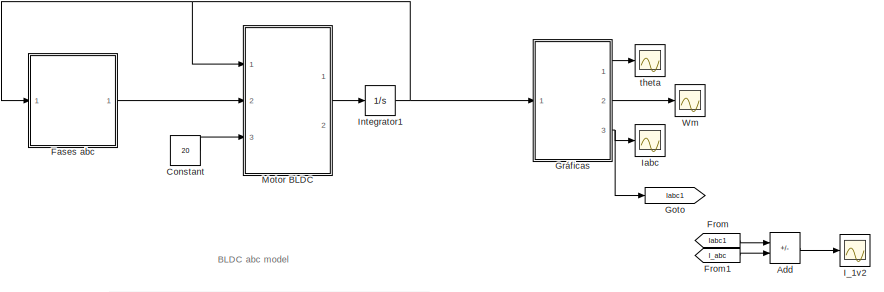
[diagram: root canvas - part 1/3, top center region]
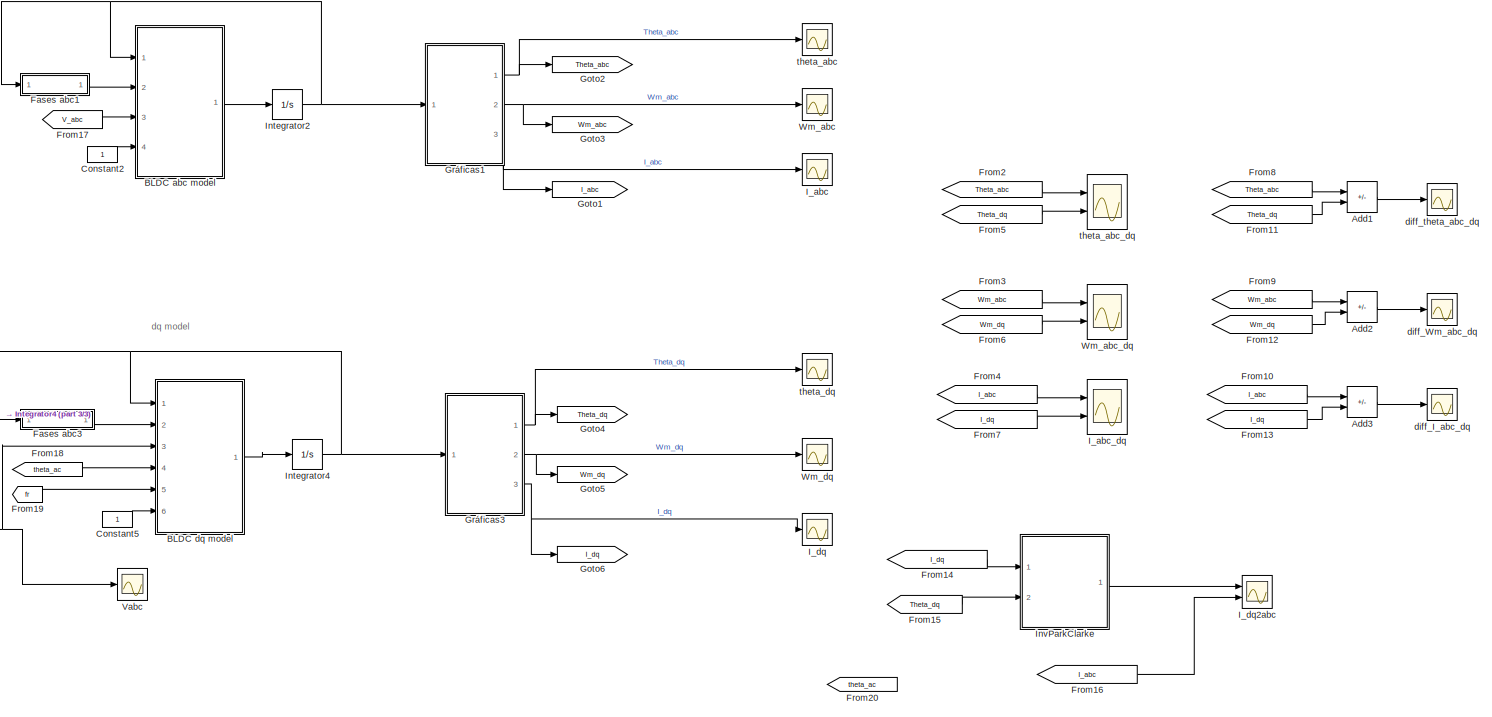
[diagram: root canvas - part 2/3, full width, middle band]
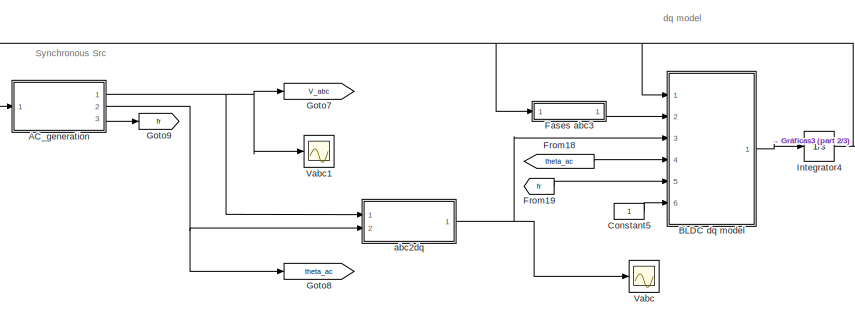
[diagram: root canvas - part 3/3, bottom left region]
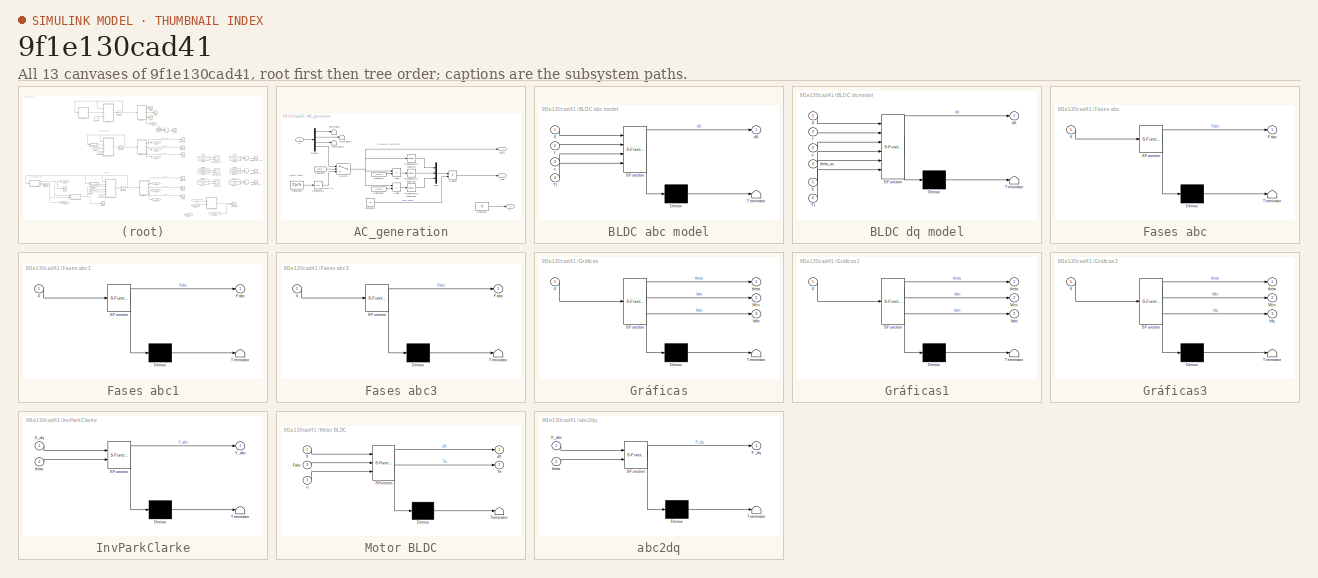
[diagram: thumbnail index - all 13 canvases of the model, root first then tree order]
MODEL slx_9f1e130cad41
KIND model
CONFIG AbsTol = auto
CONFIG EnableMultiTasking = off
CONFIG FixedStep = 0.00001
CONFIG MaxStep = auto
CONFIG MinStep = auto
CONFIG RelTol = 1e-3
CONFIG SampleTimeConstraint = Unconstrained
CONFIG SolverName = FixedStepAuto
CONFIG StartTime = 0.0
CONFIG StopTime = 15
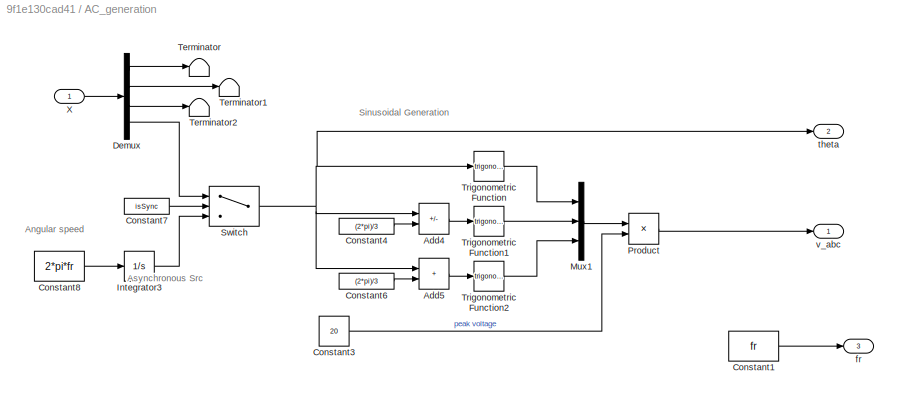
BLOCK [SubSystem] AC_generation
  Ports = [1, 3]
  RequestExecContextInheritance = off
BLOCK [Sum] AC_generation/Add4
  IconShape = rectangular
  Inputs = +-
  Ports = [2, 1]
BLOCK [Sum] AC_generation/Add5
  IconShape = rectangular
  Ports = [2, 1]
BLOCK [Constant] AC_generation/Constant1
  Value = fr
BLOCK [Constant] AC_generation/Constant3
  Value = 20
BLOCK [Constant] AC_generation/Constant4
  Value = (2*pi)/3
BLOCK [Constant] AC_generation/Constant6
  Value = (2*pi)/3
BLOCK [Constant] AC_generation/Constant7
  Value = isSync
BLOCK [Constant] AC_generation/Constant8
  Value = 2*pi*fr
BLOCK [Demux] AC_generation/Demux
  Ports = [1, 4]
BLOCK [Integrator] AC_generation/Integrator3
  Ports = [1, 1]
BLOCK [Mux] AC_generation/Mux1
  DisplayOption = bar
  Inputs = 3
  Ports = [3, 1]
BLOCK [Product] AC_generation/Product
  Ports = [2, 1]
BLOCK [Switch] AC_generation/Switch
  Criteria = u2 > Threshold
  InputSameDT = off
  SaturateOnIntegerOverflow = off
BLOCK [Terminator] AC_generation/Terminator
BLOCK [Terminator] AC_generation/Terminator1
BLOCK [Terminator] AC_generation/Terminator2
BLOCK [Trigonometry] AC_generation/Trigonometric Function
  Ports = [1, 1]
BLOCK [Trigonometry] AC_generation/Trigonometric Function1
  Ports = [1, 1]
BLOCK [Trigonometry] AC_generation/Trigonometric Function2
  Ports = [1, 1]
BLOCK [Inport] AC_generation/X
BLOCK [Outport] AC_generation/fr
  Port = 3
BLOCK [Outport] AC_generation/theta
  Port = 2
BLOCK [Outport] AC_generation/v_abc
BLOCK [Sum] Add
  Commented = on
  IconShape = rectangular
  Inputs = +-
  Ports = [2, 1]
BLOCK [Sum] Add1
  IconShape = rectangular
  Inputs = +-
  Ports = [2, 1]
BLOCK [Sum] Add2
  IconShape = rectangular
  Inputs = +-
  Ports = [2, 1]
BLOCK [Sum] Add3
  Commented = on
  IconShape = rectangular
  Inputs = +-
  Ports = [2, 1]
BLOCK [SubSystem] BLDC abc model
  ErrorFcn = Stateflow.Translate.translate
  PermitHierarchicalResolution = ExplicitOnly
  Ports = [4, 1]
  RequestExecContextInheritance = off
  SFBlockType = MATLAB Function
  TreatAsAtomicUnit = on
BLOCK [Demux] BLDC abc model/ Demux 
  Outputs = 1
  Ports = [1, 1]
BLOCK [S-Function] BLDC abc model/ SFunction 
  EnableBusSupport = on
  FunctionName = sf_sfun
  PortCounts = [4 2]
  Ports = [4, 2]
  SFcnIsStateOwnerBlock = off
  SFunctionDeploymentMode = off
  Tag = Stateflow S-Function 4
BLOCK [Terminator] BLDC abc model/ Terminator 
BLOCK [Inport] BLDC abc model/Tl
  Port = 4
BLOCK [Inport] BLDC abc model/X
BLOCK [Outport] BLDC abc model/dX
  VectorParamsAs1DForOutWhenUnconnected = off
BLOCK [Inport] BLDC abc model/f
  Port = 2
BLOCK [Inport] BLDC abc model/v
  Port = 3
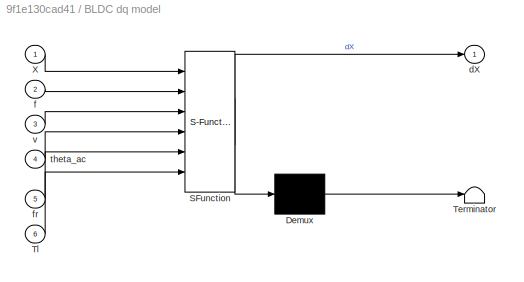
BLOCK [SubSystem] BLDC dq model
  ErrorFcn = Stateflow.Translate.translate
  PermitHierarchicalResolution = ExplicitOnly
  Ports = [6, 1]
  RequestExecContextInheritance = off
  SFBlockType = MATLAB Function
  TreatAsAtomicUnit = on
BLOCK [Demux] BLDC dq model/ Demux 
  Outputs = 1
  Ports = [1, 1]
BLOCK [S-Function] BLDC dq model/ SFunction 
  EnableBusSupport = on
  FunctionName = sf_sfun
  PortCounts = [6 2]
  Ports = [6, 2]
  SFcnIsStateOwnerBlock = off
  SFunctionDeploymentMode = off
  Tag = Stateflow S-Function 10
BLOCK [Terminator] BLDC dq model/ Terminator 
BLOCK [Inport] BLDC dq model/Tl
  Port = 6
BLOCK [Inport] BLDC dq model/X
BLOCK [Outport] BLDC dq model/dX
  VectorParamsAs1DForOutWhenUnconnected = off
BLOCK [Inport] BLDC dq model/f
  Port = 2
BLOCK [Inport] BLDC dq model/fr
  Port = 5
BLOCK [Inport] BLDC dq model/theta_ac
  Port = 4
BLOCK [Inport] BLDC dq model/v
  Port = 3
BLOCK [Constant] Constant
  Commented = on
  Value = 20
BLOCK [Constant] Constant2
BLOCK [Constant] Constant5
BLOCK [SubSystem] Fases abc
  Commented = on
  ErrorFcn = Stateflow.Translate.translate
  PermitHierarchicalResolution = ExplicitOnly
  Ports = [1, 1]
  RequestExecContextInheritance = off
  SFBlockType = MATLAB Function
  TreatAsAtomicUnit = on
BLOCK [Demux] Fases abc/ Demux 
  Outputs = 1
  Ports = [1, 1]
BLOCK [S-Function] Fases abc/ SFunction 
  EnableBusSupport = on
  FunctionName = sf_sfun
  PortCounts = [1 2]
  Ports = [1, 2]
  SFcnIsStateOwnerBlock = off
  SFunctionDeploymentMode = off
  Tag = Stateflow S-Function 3
BLOCK [Terminator] Fases abc/ Terminator 
BLOCK [Outport] Fases abc/Fabc
  VectorParamsAs1DForOutWhenUnconnected = off
BLOCK [Inport] Fases abc/X
BLOCK [SubSystem] Fases abc1
  ErrorFcn = Stateflow.Translate.translate
  PermitHierarchicalResolution = ExplicitOnly
  Ports = [1, 1]
  RequestExecContextInheritance = off
  SFBlockType = MATLAB Function
  TreatAsAtomicUnit = on
BLOCK [Demux] Fases abc1/ Demux 
  Outputs = 1
  Ports = [1, 1]
BLOCK [S-Function] Fases abc1/ SFunction 
  EnableBusSupport = on
  FunctionName = sf_sfun
  PortCounts = [1 2]
  Ports = [1, 2]
  SFcnIsStateOwnerBlock = off
  SFunctionDeploymentMode = off
  Tag = Stateflow S-Function 5
BLOCK [Terminator] Fases abc1/ Terminator 
BLOCK [Outport] Fases abc1/Fabc
  VectorParamsAs1DForOutWhenUnconnected = off
BLOCK [Inport] Fases abc1/X
BLOCK [SubSystem] Fases abc3
  ErrorFcn = Stateflow.Translate.translate
  PermitHierarchicalResolution = ExplicitOnly
  Ports = [1, 1]
  RequestExecContextInheritance = off
  SFBlockType = MATLAB Function
  TreatAsAtomicUnit = on
BLOCK [Demux] Fases abc3/ Demux 
  Outputs = 1
  Ports = [1, 1]
BLOCK [S-Function] Fases abc3/ SFunction 
  EnableBusSupport = on
  FunctionName = sf_sfun
  PortCounts = [1 2]
  Ports = [1, 2]
  SFcnIsStateOwnerBlock = off
  SFunctionDeploymentMode = off
  Tag = Stateflow S-Function 11
BLOCK [Terminator] Fases abc3/ Terminator 
BLOCK [Outport] Fases abc3/Fabc
  VectorParamsAs1DForOutWhenUnconnected = off
BLOCK [Inport] Fases abc3/X
BLOCK [From] From
  Commented = on
  GotoTag = Iabc1
BLOCK [From] From1
  Commented = on
  GotoTag = I_abc
BLOCK [From] From10
  Commented = on
  GotoTag = I_abc
BLOCK [From] From11
  GotoTag = Theta_dq
BLOCK [From] From12
  GotoTag = Wm_dq
BLOCK [From] From13
  Commented = on
  GotoTag = I_dq
BLOCK [From] From14
  GotoTag = I_dq
BLOCK [From] From15
  GotoTag = Theta_dq
BLOCK [From] From16
  GotoTag = I_abc
BLOCK [From] From17
  GotoTag = V_abc
BLOCK [From] From18
  GotoTag = theta_ac
BLOCK [From] From19
  GotoTag = fr
BLOCK [From] From2
  GotoTag = Theta_abc
BLOCK [From] From20
  GotoTag = theta_ac
BLOCK [From] From3
  GotoTag = Wm_abc
BLOCK [From] From4
  Commented = on
  GotoTag = I_abc
BLOCK [From] From5
  GotoTag = Theta_dq
BLOCK [From] From6
  GotoTag = Wm_dq
BLOCK [From] From7
  Commented = on
  GotoTag = I_dq
BLOCK [From] From8
  GotoTag = Theta_abc
BLOCK [From] From9
  GotoTag = Wm_abc
BLOCK [Goto] Goto
  Commented = on
  GotoTag = Iabc1
BLOCK [Goto] Goto1
  GotoTag = I_abc
BLOCK [Goto] Goto2
  GotoTag = Theta_abc
BLOCK [Goto] Goto3
  GotoTag = Wm_abc
BLOCK [Goto] Goto4
  GotoTag = Theta_dq
BLOCK [Goto] Goto5
  GotoTag = Wm_dq
BLOCK [Goto] Goto6
  GotoTag = I_dq
BLOCK [Goto] Goto7
  GotoTag = V_abc
BLOCK [Goto] Goto8
  GotoTag = theta_ac
BLOCK [Goto] Goto9
  GotoTag = fr
BLOCK [SubSystem] Gráficas
  Commented = on
  ErrorFcn = Stateflow.Translate.translate
  PermitHierarchicalResolution = ExplicitOnly
  Ports = [1, 3]
  RequestExecContextInheritance = off
  SFBlockType = MATLAB Function
  TreatAsAtomicUnit = on
BLOCK [Demux] Gráficas/ Demux 
  Outputs = 1
  Ports = [1, 1]
BLOCK [S-Function] Gráficas/ SFunction 
  EnableBusSupport = on
  FunctionName = sf_sfun
  PortCounts = [1 4]
  Ports = [1, 4]
  SFcnIsStateOwnerBlock = off
  SFunctionDeploymentMode = off
  Tag = Stateflow S-Function 2
BLOCK [Terminator] Gráficas/ Terminator 
BLOCK [Outport] Gráficas/Iabc
  Port = 3
  VectorParamsAs1DForOutWhenUnconnected = off
BLOCK [Outport] Gráficas/Wm
  Port = 2
  VectorParamsAs1DForOutWhenUnconnected = off
BLOCK [Inport] Gráficas/X
BLOCK [Outport] Gráficas/theta
  VectorParamsAs1DForOutWhenUnconnected = off
BLOCK [SubSystem] Gráficas1
  ErrorFcn = Stateflow.Translate.translate
  PermitHierarchicalResolution = ExplicitOnly
  Ports = [1, 3]
  RequestExecContextInheritance = off
  SFBlockType = MATLAB Function
  TreatAsAtomicUnit = on
BLOCK [Demux] Gráficas1/ Demux 
  Outputs = 1
  Ports = [1, 1]
BLOCK [S-Function] Gráficas1/ SFunction 
  EnableBusSupport = on
  FunctionName = sf_sfun
  PortCounts = [1 4]
  Ports = [1, 4]
  SFcnIsStateOwnerBlock = off
  SFunctionDeploymentMode = off
  Tag = Stateflow S-Function 6
BLOCK [Terminator] Gráficas1/ Terminator 
BLOCK [Outport] Gráficas1/Iabc
  Port = 3
  VectorParamsAs1DForOutWhenUnconnected = off
BLOCK [Outport] Gráficas1/Wm
  Port = 2
  VectorParamsAs1DForOutWhenUnconnected = off
BLOCK [Inport] Gráficas1/X
BLOCK [Outport] Gráficas1/theta
  VectorParamsAs1DForOutWhenUnconnected = off
BLOCK [SubSystem] Gráficas3
  ErrorFcn = Stateflow.Translate.translate
  PermitHierarchicalResolution = ExplicitOnly
  Ports = [1, 3]
  RequestExecContextInheritance = off
  SFBlockType = MATLAB Function
  TreatAsAtomicUnit = on
BLOCK [Demux] Gráficas3/ Demux 
  Outputs = 1
  Ports = [1, 1]
BLOCK [S-Function] Gráficas3/ SFunction 
  EnableBusSupport = on
  FunctionName = sf_sfun
  PortCounts = [1 4]
  Ports = [1, 4]
  SFcnIsStateOwnerBlock = off
  SFunctionDeploymentMode = off
  Tag = Stateflow S-Function 12
BLOCK [Terminator] Gráficas3/ Terminator 
BLOCK [Outport] Gráficas3/Idq
  Port = 3
  VectorParamsAs1DForOutWhenUnconnected = off
BLOCK [Outport] Gráficas3/Wm
  Port = 2
  VectorParamsAs1DForOutWhenUnconnected = off
BLOCK [Inport] Gráficas3/X
BLOCK [Outport] Gráficas3/theta
  VectorParamsAs1DForOutWhenUnconnected = off
BLOCK [Scope] I_1v2
  Commented = on
  Floating = off
  NumInputPorts = 1
  Ports = [1]
  ScopeSpecificationString = Simulink.scopes.TimeScopeBlockCfg('CurrentConfiguration', extmgr.ConfigurationSet(extmgr.Configuration('Core','General UI',true),extmgr.Configuration('Core','Source UI',true),extmgr.Configuration('Sources','WiredSimulink',true,'DataLoggingVariableName','ScopeData1'),extmgr.Configuration('Visuals','Time Domain',true,'SerializedDisplays',{struct('MinYLimReal','-0.000000000002','MaxYLimReal','0.00000...<+1538ch>
BLOCK [Scope] I_abc
  Floating = off
  NumInputPorts = 1
  Ports = [1]
  ScopeSpecificationString = Simulink.scopes.TimeScopeBlockCfg('CurrentConfiguration', extmgr.ConfigurationSet(extmgr.Configuration('Core','General UI',true),extmgr.Configuration('Core','Source UI',true),extmgr.Configuration('Sources','WiredSimulink',true,'DataLoggingVariableName','ScopeData1'),extmgr.Configuration('Visuals','Time Domain',true,'SerializedDisplays',{struct('MinYLimReal','-29.01084','MaxYLimReal','29.01084','YL...<+1496ch>
BLOCK [Scope] I_abc_dq
  Commented = on
  Floating = off
  NumInputPorts = 2
  Ports = [2]
  ScopeSpecificationString = Simulink.scopes.TimeScopeBlockCfg('CurrentConfiguration', extmgr.ConfigurationSet(extmgr.Configuration('Core','General UI',true),extmgr.Configuration('Core','Source UI',true),extmgr.Configuration('Sources','WiredSimulink',true,'DataLoggingVariableName','ScopeData4'),extmgr.Configuration('Visuals','Time Domain',true,'SerializedDisplays',{struct('MinYLimReal','-155.37663','MaxYLimReal','1398.3863','...<+1442ch>
BLOCK [Scope] I_dq
  Floating = off
  NumInputPorts = 1
  Ports = [1]
  ScopeSpecificationString = Simulink.scopes.TimeScopeBlockCfg('CurrentConfiguration', extmgr.ConfigurationSet(extmgr.Configuration('Core','General UI',true),extmgr.Configuration('Core','Source UI',true),extmgr.Configuration('Sources','WiredSimulink',true,'DataLoggingVariableName','ScopeData1'),extmgr.Configuration('Visuals','Time Domain',true,'SerializedDisplays',{struct('MinYLimReal','-39.61922','MaxYLimReal','7.06533','YLa...<+1478ch>
BLOCK [Scope] I_dq2abc
  Floating = off
  NumInputPorts = 2
  Ports = [2]
  ScopeSpecificationString = Simulink.scopes.TimeScopeBlockCfg('CurrentConfiguration', extmgr.ConfigurationSet(extmgr.Configuration('Core','General UI',true),extmgr.Configuration('Core','Source UI',true),extmgr.Configuration('Sources','WiredSimulink',true,'DataLoggingVariableName','ScopeData8'),extmgr.Configuration('Visuals','Time Domain',true,'SerializedDisplays',{struct('MinYLimReal','-31.56379','MaxYLimReal','31.54715','YL...<+2193ch>
BLOCK [Scope] Iabc
  Commented = on
  Floating = off
  NumInputPorts = 1
  Ports = [1]
  ScopeSpecificationString = Simulink.scopes.TimeScopeBlockCfg('CurrentConfiguration', extmgr.ConfigurationSet(extmgr.Configuration('Core','General UI',true),extmgr.Configuration('Core','Source UI',true),extmgr.Configuration('Sources','WiredSimulink',true,'DataLoggingVariableName','ScopeData2'),extmgr.Configuration('Visuals','Time Domain',true,'SerializedDisplays',{struct('MinYLimReal','-29.01084','MaxYLimReal','29.01084','YL...<+1516ch>
BLOCK [Integrator] Integrator1
  Commented = on
  InitialCondition = [0 0.1 0 0 0]
  Ports = [1, 1]
BLOCK [Integrator] Integrator2
  InitialCondition = [0;0;0;0.1;0]
  Ports = [1, 1]
BLOCK [Integrator] Integrator4
  InitialCondition = [0;0;0.1;0]
  Ports = [1, 1]
BLOCK [SubSystem] InvParkClarke
  ErrorFcn = Stateflow.Translate.translate
  PermitHierarchicalResolution = ExplicitOnly
  Ports = [2, 1]
  RequestExecContextInheritance = off
  SFBlockType = MATLAB Function
  TreatAsAtomicUnit = on
BLOCK [Demux] InvParkClarke/ Demux 
  Outputs = 1
  Ports = [1, 1]
BLOCK [S-Function] InvParkClarke/ SFunction 
  EnableBusSupport = on
  FunctionName = sf_sfun
  PortCounts = [2 2]
  Ports = [2, 2]
  SFcnIsStateOwnerBlock = off
  SFunctionDeploymentMode = off
  Tag = Stateflow S-Function 7
BLOCK [Terminator] InvParkClarke/ Terminator 
BLOCK [Inport] InvParkClarke/X_dq
BLOCK [Outport] InvParkClarke/Y_abc
  VectorParamsAs1DForOutWhenUnconnected = off
BLOCK [Inport] InvParkClarke/theta
  Port = 2
BLOCK [SubSystem] Motor BLDC
  Commented = on
  ErrorFcn = Stateflow.Translate.translate
  PermitHierarchicalResolution = ExplicitOnly
  Ports = [3, 2]
  RequestExecContextInheritance = off
  SFBlockType = MATLAB Function
  TreatAsAtomicUnit = on
BLOCK [Demux] Motor BLDC/ Demux 
  Outputs = 1
  Ports = [1, 1]
BLOCK [S-Function] Motor BLDC/ SFunction 
  EnableBusSupport = on
  FunctionName = sf_sfun
  PortCounts = [3 3]
  Ports = [3, 3]
  SFcnIsStateOwnerBlock = off
  SFunctionDeploymentMode = off
  Tag = Stateflow S-Function 1
BLOCK [Terminator] Motor BLDC/ Terminator 
BLOCK [Inport] Motor BLDC/Fabc
  Port = 2
BLOCK [Outport] Motor BLDC/Te
  Port = 2
  VectorParamsAs1DForOutWhenUnconnected = off
BLOCK [Inport] Motor BLDC/X
BLOCK [Outport] Motor BLDC/dX
  VectorParamsAs1DForOutWhenUnconnected = off
BLOCK [Inport] Motor BLDC/u
  Port = 3
BLOCK [Scope] Vabc
  Floating = off
  NumInputPorts = 1
  Ports = [1]
  ScopeSpecificationString = Simulink.scopes.TimeScopeBlockCfg('CurrentConfiguration', extmgr.ConfigurationSet(extmgr.Configuration('Core','General UI',true),extmgr.Configuration('Core','Source UI',true),extmgr.Configuration('Sources','WiredSimulink',true,'DataLoggingVariableName','ScopeData1'),extmgr.Configuration('Visuals','Time Domain',true,'SerializedDisplays',{struct('MinYLimReal','-30.61862','MaxYLimReal','30.61862','YL...<+1484ch>
BLOCK [Scope] Vabc1
  Floating = off
  NumInputPorts = 1
  Ports = [1]
  ScopeSpecificationString = Simulink.scopes.TimeScopeBlockCfg('CurrentConfiguration', extmgr.ConfigurationSet(extmgr.Configuration('Core','General UI',true),extmgr.Configuration('Core','Source UI',true),extmgr.Configuration('Sources','WiredSimulink',true,'DataLoggingVariableName','ScopeData1'),extmgr.Configuration('Visuals','Time Domain',true,'SerializedDisplays',{struct('MinYLimReal','-25.00000','MaxYLimReal','25.00000','YL...<+1522ch>
BLOCK [Scope] Wm
  Commented = on
  Floating = off
  NumInputPorts = 1
  Ports = [1]
  ScopeSpecificationString = Simulink.scopes.TimeScopeBlockCfg('CurrentConfiguration', extmgr.ConfigurationSet(extmgr.Configuration('Core','General UI',true),extmgr.Configuration('Core','Source UI',true),extmgr.Configuration('Sources','WiredSimulink',true,'DataLoggingVariableName','ScopeData1'),extmgr.Configuration('Visuals','Time Domain',true,'SerializedDisplays',{struct('MinYLimReal','-12.90335','MaxYLimReal','111.77952','Y...<+1453ch>
BLOCK [Scope] Wm_abc
  Floating = off
  NumInputPorts = 1
  Ports = [1]
  ScopeSpecificationString = Simulink.scopes.TimeScopeBlockCfg('CurrentConfiguration', extmgr.ConfigurationSet(extmgr.Configuration('Core','General UI',true),extmgr.Configuration('Core','Source UI',true),extmgr.Configuration('Sources','WiredSimulink',true,'DataLoggingVariableName','ScopeData2'),extmgr.Configuration('Visuals','Time Domain',true,'SerializedDisplays',{struct('MinYLimReal','-108.3692','MaxYLimReal','101.53564','Y...<+1448ch>
BLOCK [Scope] Wm_abc_dq
  Floating = off
  NumInputPorts = 2
  Ports = [2]
  ScopeSpecificationString = Simulink.scopes.TimeScopeBlockCfg('CurrentConfiguration', extmgr.ConfigurationSet(extmgr.Configuration('Core','General UI',true),extmgr.Configuration('Core','Source UI',true),extmgr.Configuration('Sources','WiredSimulink',true,'DataLoggingVariableName','ScopeData3'),extmgr.Configuration('Visuals','Time Domain',true,'SerializedDisplays',{struct('MinYLimReal','-8.90679','MaxYLimReal','74.90054','YLa...<+1440ch>
BLOCK [Scope] Wm_dq
  Floating = off
  NumInputPorts = 1
  Ports = [1]
  ScopeSpecificationString = Simulink.scopes.TimeScopeBlockCfg('CurrentConfiguration', extmgr.ConfigurationSet(extmgr.Configuration('Core','General UI',true),extmgr.Configuration('Core','Source UI',true),extmgr.Configuration('Sources','WiredSimulink',true,'DataLoggingVariableName','ScopeData2'),extmgr.Configuration('Visuals','Time Domain',true,'SerializedDisplays',{struct('MinYLimReal','-10.13564','MaxYLimReal','86.92299','YL...<+1450ch>
BLOCK [SubSystem] abc2dq
  ErrorFcn = Stateflow.Translate.translate
  PermitHierarchicalResolution = ExplicitOnly
  Ports = [2, 1]
  RequestExecContextInheritance = off
  SFBlockType = MATLAB Function
  TreatAsAtomicUnit = on
BLOCK [Demux] abc2dq/ Demux 
  Outputs = 1
  Ports = [1, 1]
BLOCK [S-Function] abc2dq/ SFunction 
  EnableBusSupport = on
  FunctionName = sf_sfun
  PortCounts = [2 2]
  Ports = [2, 2]
  SFcnIsStateOwnerBlock = off
  SFunctionDeploymentMode = off
  Tag = Stateflow S-Function 8
BLOCK [Terminator] abc2dq/ Terminator 
BLOCK [Outport] abc2dq/F_dq
  VectorParamsAs1DForOutWhenUnconnected = off
BLOCK [Inport] abc2dq/X_abc
BLOCK [Inport] abc2dq/theta
  Port = 2
BLOCK [Scope] diff_I_abc_dq
  Commented = on
  Floating = off
  NumInputPorts = 1
  Ports = [1]
  ScopeSpecificationString = Simulink.scopes.TimeScopeBlockCfg('CurrentConfiguration', extmgr.ConfigurationSet(extmgr.Configuration('Core','General UI',true),extmgr.Configuration('Core','Source UI',true),extmgr.Configuration('Sources','WiredSimulink',true,'DataLoggingVariableName','ScopeData7'),extmgr.Configuration('Visuals','Time Domain',true,'SerializedDisplays',{struct('MinYLimReal','-29.01084','MaxYLimReal','29.01084','YL...<+1523ch>
BLOCK [Scope] diff_Wm_abc_dq
  Floating = off
  NumInputPorts = 1
  Ports = [1]
  ScopeSpecificationString = Simulink.scopes.TimeScopeBlockCfg('CurrentConfiguration', extmgr.ConfigurationSet(extmgr.Configuration('Core','General UI',true),extmgr.Configuration('Core','Source UI',true),extmgr.Configuration('Sources','WiredSimulink',true,'DataLoggingVariableName','ScopeData6'),extmgr.Configuration('Visuals','Time Domain',true,'SerializedDisplays',{struct('MinYLimReal','-19.04168','MaxYLimReal','11.44682','YL...<+1442ch>
BLOCK [Scope] diff_theta_abc_dq
  Floating = off
  NumInputPorts = 1
  Ports = [1]
  ScopeSpecificationString = Simulink.scopes.TimeScopeBlockCfg('CurrentConfiguration', extmgr.ConfigurationSet(extmgr.Configuration('Core','General UI',true),extmgr.Configuration('Core','Source UI',true),extmgr.Configuration('Sources','WiredSimulink',true,'DataLoggingVariableName','ScopeData5'),extmgr.Configuration('Visuals','Time Domain',true,'SerializedDisplays',{struct('MinYLimReal','-0.12489','MaxYLimReal','1.12401','YLab...<+1392ch>
BLOCK [Scope] theta
  Commented = on
  Floating = off
  NumInputPorts = 1
  Ports = [1]
  ScopeSpecificationString = Simulink.scopes.TimeScopeBlockCfg('CurrentConfiguration', extmgr.ConfigurationSet(extmgr.Configuration('Core','General UI',true),extmgr.Configuration('Core','Source UI',true),extmgr.Configuration('Sources','WiredSimulink',true),extmgr.Configuration('Visuals','Time Domain',true,'SerializedDisplays',{struct('MinYLimReal','-147.23428','MaxYLimReal','1325.1052','YLabelReal','','MinYLimMag',' 0.00000',...<+1377ch>
BLOCK [Scope] theta_abc
  Floating = off
  NumInputPorts = 1
  Ports = [1]
  ScopeSpecificationString = Simulink.scopes.TimeScopeBlockCfg('CurrentConfiguration', extmgr.ConfigurationSet(extmgr.Configuration('Core','General UI',true),extmgr.Configuration('Core','Source UI',true),extmgr.Configuration('Sources','WiredSimulink',true,'DataLoggingVariableName','ScopeData3'),extmgr.Configuration('Visuals','Time Domain',true,'SerializedDisplays',{struct('MinYLimReal','-91.22088','MaxYLimReal','820.98302','Y...<+1407ch>
BLOCK [Scope] theta_abc_dq
  Floating = off
  NumInputPorts = 2
  Ports = [2]
  ScopeSpecificationString = Simulink.scopes.TimeScopeBlockCfg('CurrentConfiguration', extmgr.ConfigurationSet(extmgr.Configuration('Core','General UI',true),extmgr.Configuration('Core','Source UI',true),extmgr.Configuration('Sources','WiredSimulink',true,'DataLoggingVariableName','ScopeData2'),extmgr.Configuration('Visuals','Time Domain',true,'SerializedDisplays',{struct('MinYLimReal','-151.39693','MaxYLimReal','1362.56742',...<+1479ch>
BLOCK [Scope] theta_dq
  Floating = off
  NumInputPorts = 1
  Ports = [1]
  ScopeSpecificationString = Simulink.scopes.TimeScopeBlockCfg('CurrentConfiguration', extmgr.ConfigurationSet(extmgr.Configuration('Core','General UI',true),extmgr.Configuration('Core','Source UI',true),extmgr.Configuration('Sources','WiredSimulink',true,'DataLoggingVariableName','ScopeData3'),extmgr.Configuration('Visuals','Time Domain',true,'SerializedDisplays',{struct('MinYLimReal','-120.5872','MaxYLimReal','1085.27991','...<+1437ch>
ANNOTATION (root): BLDC abc model
ANNOTATION (root): Synchronous Src
ANNOTATION (root): dq model
ANNOTATION AC_generation: Angular speed
ANNOTATION AC_generation: Asynchronous Src
ANNOTATION AC_generation: Sinusoidal Generation
LINE AC_generation/Add4:1 -> AC_generation/Trigonometric Function1:1
LINE AC_generation/Add5:1 -> AC_generation/Trigonometric Function2:1
LINE AC_generation/Constant1:1 -> AC_generation/fr:1
LINE AC_generation/Constant3:1 -> AC_generation/Product:2
LINE AC_generation/Constant4:1 -> AC_generation/Add4:2
LINE AC_generation/Constant6:1 -> AC_generation/Add5:2
LINE AC_generation/Constant7:1 -> AC_generation/Switch:2
LINE AC_generation/Constant8:1 -> AC_generation/Integrator3:1
LINE AC_generation/Demux:1 -> AC_generation/Terminator:1
LINE AC_generation/Demux:2 -> AC_generation/Terminator1:1
LINE AC_generation/Demux:3 -> AC_generation/Terminator2:1
LINE AC_generation/Demux:4 -> AC_generation/Switch:1
LINE AC_generation/Integrator3:1 -> AC_generation/Switch:3
LINE AC_generation/Mux1:1 -> AC_generation/Product:1
LINE AC_generation/Product:1 -> AC_generation/v_abc:1
NET AC_generation/Switch:1 -> AC_generation/Add4:1, AC_generation/Add5:1, AC_generation/Trigonometric Function:1, AC_generation/theta:1
LINE AC_generation/Trigonometric Function1:1 -> AC_generation/Mux1:2
LINE AC_generation/Trigonometric Function2:1 -> AC_generation/Mux1:3
LINE AC_generation/Trigonometric Function:1 -> AC_generation/Mux1:1
LINE AC_generation/X:1 -> AC_generation/Demux:1
NET AC_generation:1 -> Goto7:1, Vabc1:1, abc2dq:1
NET AC_generation:2 -> Goto8:1, abc2dq:2
LINE AC_generation:3 -> Goto9:1
LINE Add1:1 -> diff_theta_abc_dq:1
LINE Add2:1 -> diff_Wm_abc_dq:1
LINE Add3:1 -> diff_I_abc_dq:1
LINE Add:1 -> I_1v2:1
LINE BLDC abc model:1 -> Integrator2:1
LINE BLDC dq model:1 -> Integrator4:1
LINE Constant2:1 -> BLDC abc model:4
LINE Constant5:1 -> BLDC dq model:6
LINE Constant:1 -> Motor BLDC:3
LINE Fases abc1:1 -> BLDC abc model:2
LINE Fases abc3:1 -> BLDC dq model:2
LINE Fases abc:1 -> Motor BLDC:2
LINE From10:1 -> Add3:1
LINE From11:1 -> Add1:2
LINE From12:1 -> Add2:2
LINE From13:1 -> Add3:2
LINE From14:1 -> InvParkClarke:1
LINE From15:1 -> InvParkClarke:2
LINE From16:1 -> I_dq2abc:2
LINE From17:1 -> BLDC abc model:3
LINE From18:1 -> BLDC dq model:4
LINE From19:1 -> BLDC dq model:5
LINE From1:1 -> Add:2
LINE From2:1 -> theta_abc_dq:1
LINE From3:1 -> Wm_abc_dq:1
LINE From4:1 -> I_abc_dq:1
LINE From5:1 -> theta_abc_dq:2
LINE From6:1 -> Wm_abc_dq:2
LINE From7:1 -> I_abc_dq:2
LINE From8:1 -> Add1:1
LINE From9:1 -> Add2:1
LINE From:1 -> Add:1
NET Gráficas1:1 -> Goto2:1, theta_abc:1
NET Gráficas1:2 -> Goto3:1, Wm_abc:1
NET Gráficas1:3 -> Goto1:1, I_abc:1
NET Gráficas3:1 -> Goto4:1, theta_dq:1
NET Gráficas3:2 -> Goto5:1, Wm_dq:1
NET Gráficas3:3 -> Goto6:1, I_dq:1
LINE Gráficas:1 -> theta:1
LINE Gráficas:2 -> Wm:1
NET Gráficas:3 -> Goto:1, Iabc:1
NET Integrator1:1 -> Fases abc:1, Gráficas:1, Motor BLDC:1
NET Integrator2:1 -> BLDC abc model:1, Fases abc1:1, Gráficas1:1
NET Integrator4:1 -> AC_generation:1, BLDC dq model:1, Fases abc3:1, Gráficas3:1
LINE InvParkClarke:1 -> I_dq2abc:1
LINE Motor BLDC:1 -> Integrator1:1
NET abc2dq:1 -> BLDC dq model:3, Vabc:1
note: NET lines group one-source signal fan-out (src -> all destinations, sorted); 1:1 wires keep LINE
CHART Fases abc3 states=1 transitions=1
  STATE_LABEL 'eML_blk_kernel()'
  STATE_LABEL 'SCRIPT:\nfunction Fabc = fcn(X)\nFabc = [0;0;0];\n    theta = mod(X(4),2*pi);\n    %theta = mod(X,2*pi);\n    \n    if (0<=theta)&&(theta<(pi/6))\n        Fa = (6/pi)*theta;\n    elseif ((pi/6)<=theta)&&(theta<(5*pi/6))\n        Fa = 1;\n    elseif ((5*pi/6<=theta))&&(theta<(7*pi/6))\n        Fa = (6/pi)*(pi-theta);\n    elseif ((7*pi/6)<=theta)&&(theta<(11*pi/6))\n        Fa = -1;\n    elseif ((11*pi/6)<=theta...<+889ch>'
CHART Gráficas3 states=1 transitions=1
  STATE_LABEL 'eML_blk_kernel()'
  STATE_LABEL 'SCRIPT:\nfunction [theta,Wm,Idq] = DEMUX(X)\ntheta = X(4); Wm = X(3);Idq = X(1:2);'
CHART Motor BLDC states=1 transitions=1
  STATE_LABEL 'eML_blk_kernel()'
  STATE_LABEL "SCRIPT:\nfunction [dX,Te] = fcn(X,Fabc,u)\nWm = X(2);Iabc = X(3:5);\nR = 0.7;\nL = 0.00272-0.0015; %=L-Lm\nJ = 0.000284;\nb = 0.02;\nP = 4;\nLambda = 0.105;\n\nTl = 1; %No carga\n\nVabc = u*Fabc;\n\nEabc = Lambda*Wm*Fabc;\ndTheta = P*Wm/2;\nTe = (Iabc'*Eabc)/Wm;\ndWm = (Te-b*Wm-Tl)/J;\ndIabc = (-R*Iabc - Eabc + Vabc)/L;\n\ndX = [dTheta;dWm;dIabc];\nend"
CHART Gráficas states=1 transitions=1
  STATE_LABEL 'eML_blk_kernel()'
  STATE_LABEL 'SCRIPT:\nfunction [theta,Wm,Iabc] = DEMUX(X)\ntheta = X(1); Wm = X(2);Iabc = X(3:5);'
CHART Fases abc states=1 transitions=1
  STATE_LABEL 'eML_blk_kernel()'
  STATE_LABEL 'SCRIPT:\nfunction Fabc = fcn(X)\n    theta = mod(X(1),2*pi);\n    \n    if (0<=theta)&&(theta<(pi/6))\n        Fa = (6/pi)*theta;\n    elseif ((pi/6)<=theta)&&(theta<(5*pi/6))\n        Fa = 1;\n    elseif ((5*pi/6<=theta))&&(theta<(7*pi/6))\n        Fa = (6/pi)*(pi-theta);\n    elseif ((7*pi/6)<=theta)&&(theta<(11*pi/6))\n        Fa = -1;\n    elseif ((11*pi/6)<=theta)&&(theta<(2*pi))\n        Fa = (6/pi)*(the...<+847ch>'
CHART BLDC abc model states=1 transitions=1
  STATE_LABEL 'eML_blk_kernel()'
  STATE_LABEL 'SCRIPT:\nfunction dX = fcn(X,f,v,Tl)\nu = [v;Tl]; \ni_a = X(1); i_b = X(2); i_c = X(3); wm = X(4); theta = X(5);\n\nlamda = 0.105;\nR = 0.7;\nL = 0.00272;\nM = 0.0015;\nJ = 0.000284;\nP = 4;\nb = 0.02;\n\n%e = [(lamda*wm).*f;0;0];\n\nA =[-(R/(L-M)) 0 0 -(lamda/(L-M))*f(1) 0;...\n    0 -(R/(L-M)) 0 -(lamda/(L-M))*f(2) 0;...\n    0 0 -(R/(L-M)) -(lamda/(L-M))*f(3) 0;...\n    (lamda/J)*f(1) (lamda/J)*f(2) (lamda/J)*f(...<+132ch>'
CHART Fases abc1 states=1 transitions=1
  STATE_LABEL 'eML_blk_kernel()'
  STATE_LABEL 'SCRIPT:\nfunction Fabc = fcn(X)\nFabc = [0;0;0];\n    theta = mod(X(5),2*pi);\n    \n    if (0<=theta)&&(theta<(pi/6))\n        Fa = (6/pi)*theta;\n    elseif ((pi/6)<=theta)&&(theta<(5*pi/6))\n        Fa = 1;\n    elseif ((5*pi/6<=theta))&&(theta<(7*pi/6))\n        Fa = (6/pi)*(pi-theta);\n    elseif ((7*pi/6)<=theta)&&(theta<(11*pi/6))\n        Fa = -1;\n    elseif ((11*pi/6)<=theta)&&(theta<(2*pi))\n        ...<+863ch>'
CHART Gráficas1 states=1 transitions=1
  STATE_LABEL 'eML_blk_kernel()'
  STATE_LABEL 'SCRIPT:\nfunction [theta,Wm,Iabc] = DEMUX(X)\ntheta = X(5); Wm = X(4);Iabc = X(1:3);'
CHART InvParkClarke states=1 transitions=1
  STATE_LABEL 'eML_blk_kernel()'
  STATE_LABEL 'SCRIPT:\nfunction Y_abc = fcn(X_dq, theta)\nX_dq0 = [X_dq;0];\n\niT_PC = sqrt(2/3)*[cos(theta)          -sin(theta)            1/sqrt(2); ...\n                  cos(theta-2*pi/3)   -sin(theta-2*pi/3)     1/sqrt(2); ...\n                  cos(theta+2*pi/3)   -sin(theta+2*pi/3)     1/sqrt(2)];\n\n\nY_abc =iT_PC*X_dq0;\nend'
CHART abc2dq states=1 transitions=1
  STATE_LABEL 'eML_blk_kernel()'
  STATE_LABEL 'SCRIPT:\nfunction F_dq = fcn(X_abc, theta)\n\n% Park clarke transform eliminating the third element\nPC_T = (sqrt(2)/2)*[sqrt(3)*cos(theta)  sin(theta)  -sin(theta) ; ...\n                    -sqrt(3)*sin(theta)  cos(theta)  -cos(theta)];\n\nF_dq = PC_T*X_abc;\n                \nend'
CHART BLDC dq model states=1 transitions=1
  STATE_LABEL 'eML_blk_kernel()'
  STATE_LABEL 'SCRIPT:\nfunction dX = fcn(X,f,v,theta_ac,fr,Tl)\ni_d = X(1); i_q = X(2); wm = X(3); theta = X(4);\ni_dq = X(1:2);\n\nlamda = 0.105;\nR = 0.7;\nL = 0.00272;\nM = 0.0015;\nJ = 0.000284;\nP = 4;\nb = 0.02;\n\n\nM_LR = [-R/(L-M)  (2*pi*fr); -(2*pi*fr)  -R/(L-M)];\n\n% Park clarke transform eliminating the third element\nPC_T = (sqrt(2)/2)*[sqrt(3)*cos(theta_ac)  sin(theta_ac)  -sin(theta_ac) ; ...\n                   ...<+510ch>'
CHART  states=0 transitions=0
CHART  states=0 transitions=0
CHART  states=0 transitions=0
CHART  states=0 transitions=0
CHART  states=0 transitions=0
CHART  states=0 transitions=0
CHART  states=0 transitions=0
CHART  states=0 transitions=0
CHART  states=0 transitions=0
CHART  states=0 transitions=0
CHART  states=0 transitions=0
